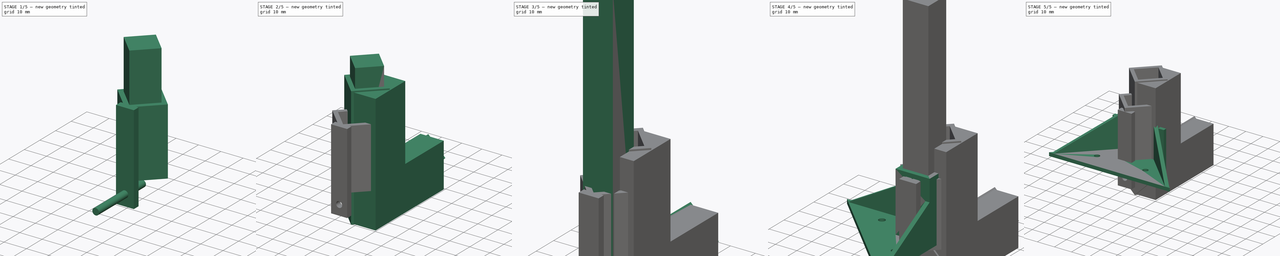
[diagram: build sequence overview — one tinted view per stage of 5, left to right]
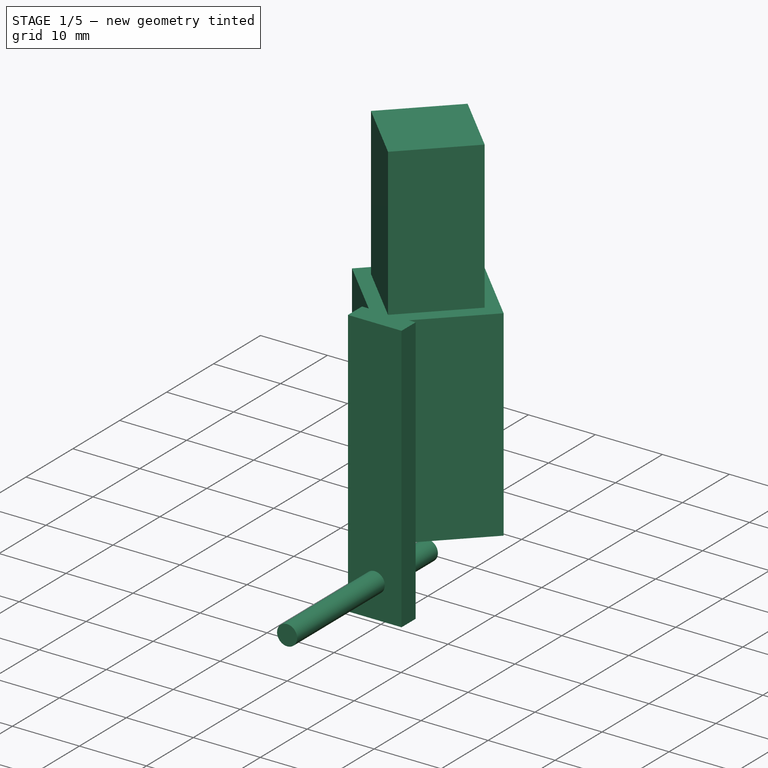
[diagram: stage 1 of 5 — iso view after this stage's code; geometry added in this stage tinted green]
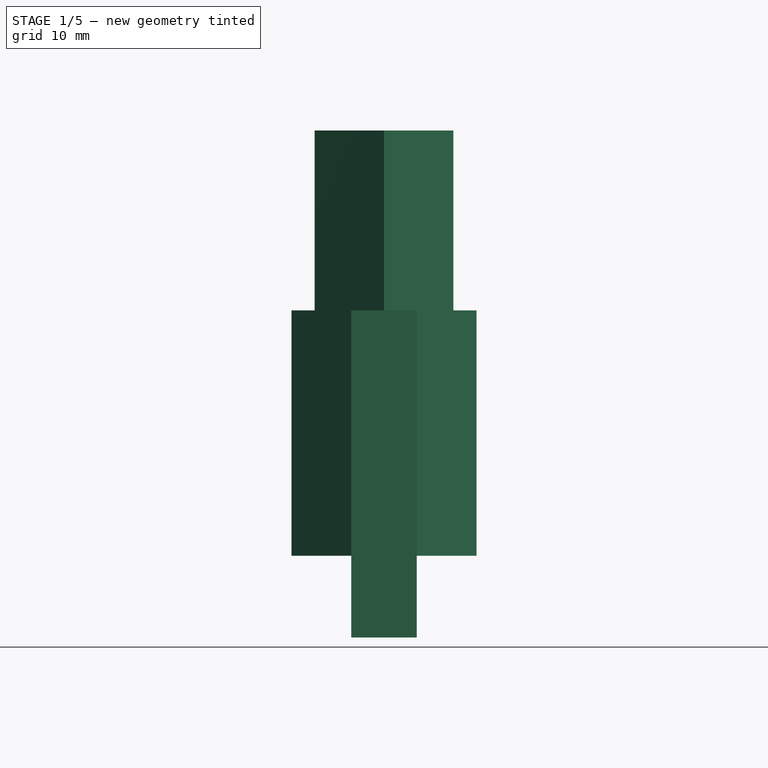
[diagram: stage 1 of 5 — front view after this stage's code; geometry added in this stage tinted green]
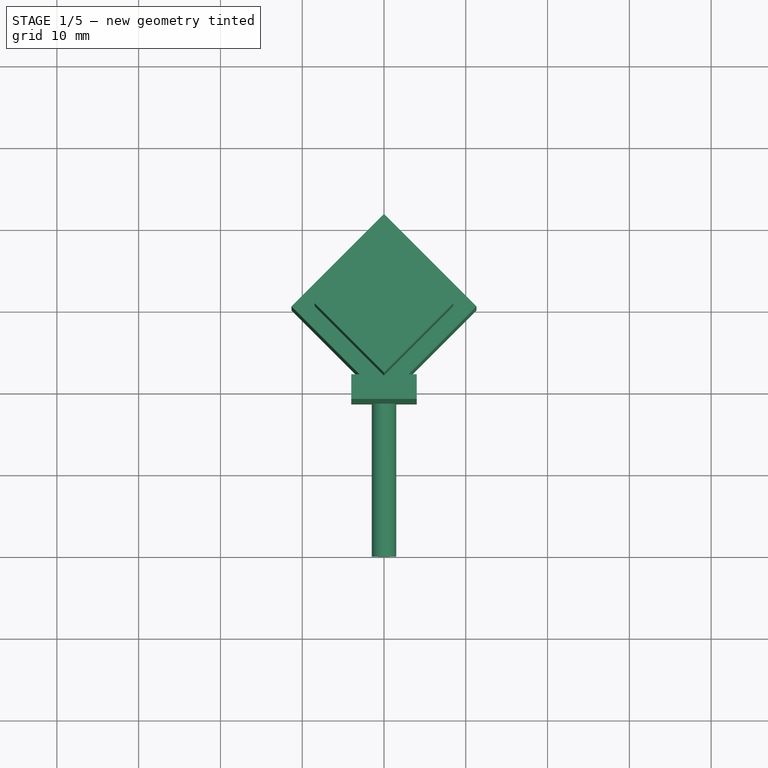
[diagram: stage 1 of 5 — top view after this stage's code; geometry added in this stage tinted green]
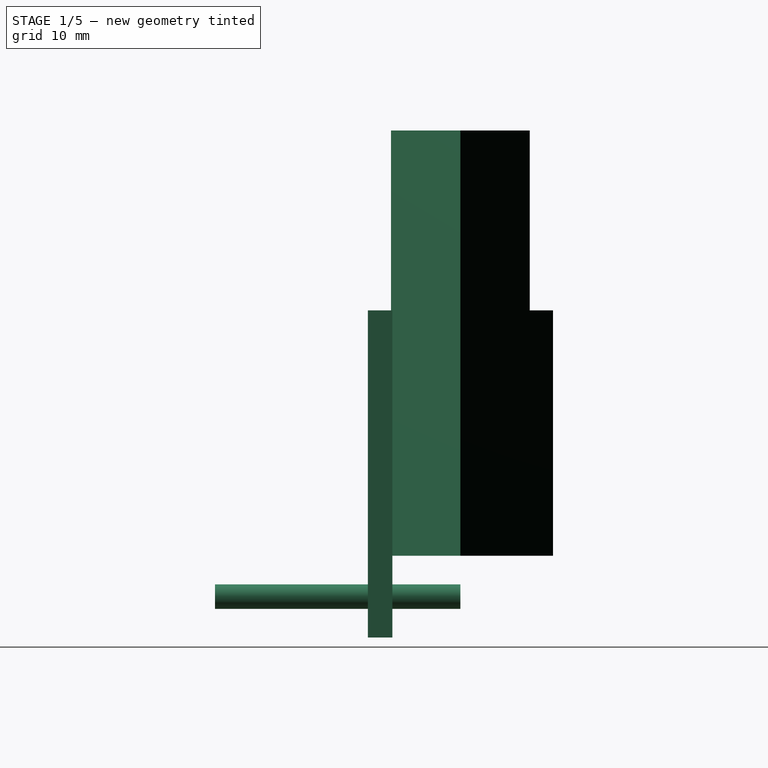
[diagram: stage 1 of 5 — right view after this stage's code; geometry added in this stage tinted green]
FCSTD DOCUMENT  (FreeCAD 0.15R4671 (Git))
Label: 木材治具
License: All rights reserved
LicenseURL: http://en.wikipedia.org/wiki/All_rights_reserved
objects: Part::Box×12, Part::MultiFuse×7, Part::Cut×4, Sketcher::SketchObject×4, PartDesign::Pad×4, Part::Cylinder×4
note: 39 computed .brp shape members not serialized (recipe doc carries the construction recipe); baked Part::Feature solids carry a one-line shape summary decoded from their .brp

FEATURE [Part::Box] Box009  label="立方体009"
  Height = 50
  Length = 12
  Placement = pos=(0,-8.48528,0) rot=(0,0,1;0.785398rad)
  Width = 12
FEATURE [Part::Box] Box010  label="立方体010"
  Height = 30
  Length = 16
  Placement = pos=(0,-11.3137,-2) rot=(0,0,1;0.785398rad)
  Width = 16
FEATURE [Part::Box] Box011  label="立方体011"
  Height = 40
  Length = 8
  Placement = pos=(-4,-11.3137,-12) rot=(0,0,1;0rad)
  Width = 3
FEATURE [Part::Cylinder] Cylinder003  label="円柱003"
  Angle = 360
  Height = 30
  Placement = pos=(0,0,-7) rot=(1,0,0;1.5708rad)
  Radius = 1.5
FEATURE [Part::MultiFuse] Fusion005
  Shapes = -> [Box010,Box011]
FEATURE [Part::MultiFuse] Fusion006
  Shapes = -> [Cylinder003,Box009]
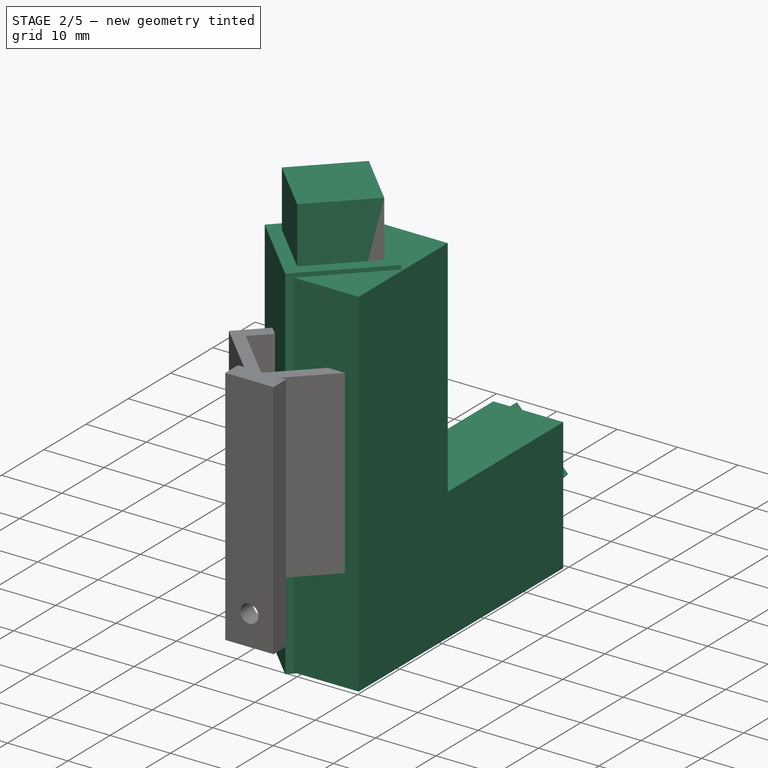
[diagram: stage 2 of 5 — iso view after this stage's code; geometry added in this stage tinted green]
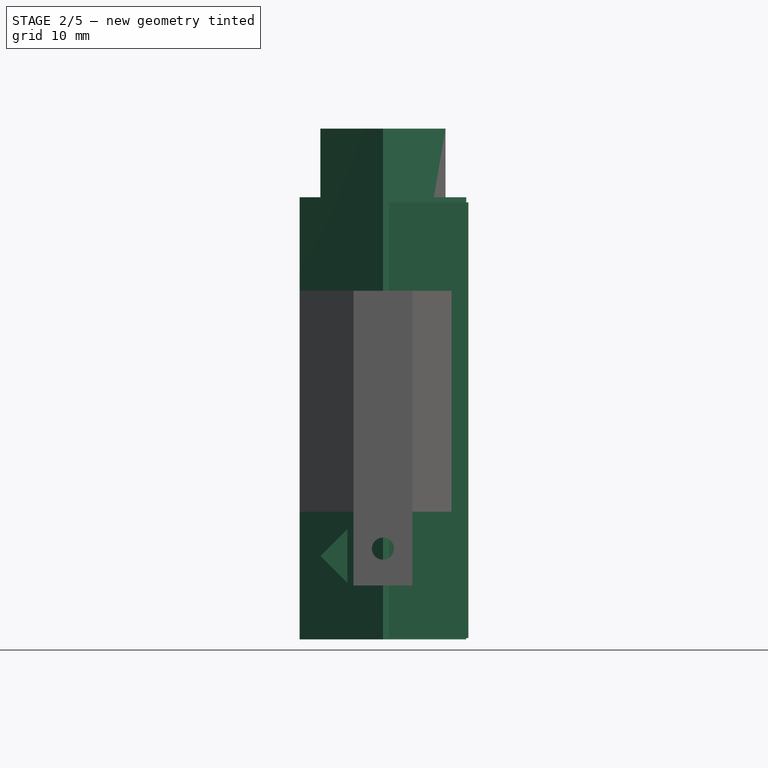
[diagram: stage 2 of 5 — front view after this stage's code; geometry added in this stage tinted green]
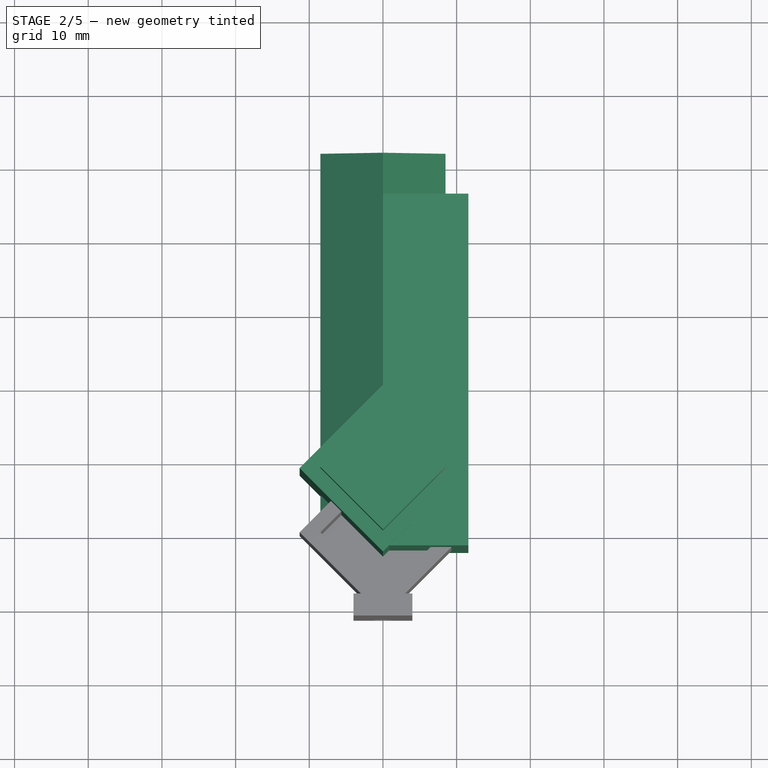
[diagram: stage 2 of 5 — top view after this stage's code; geometry added in this stage tinted green]
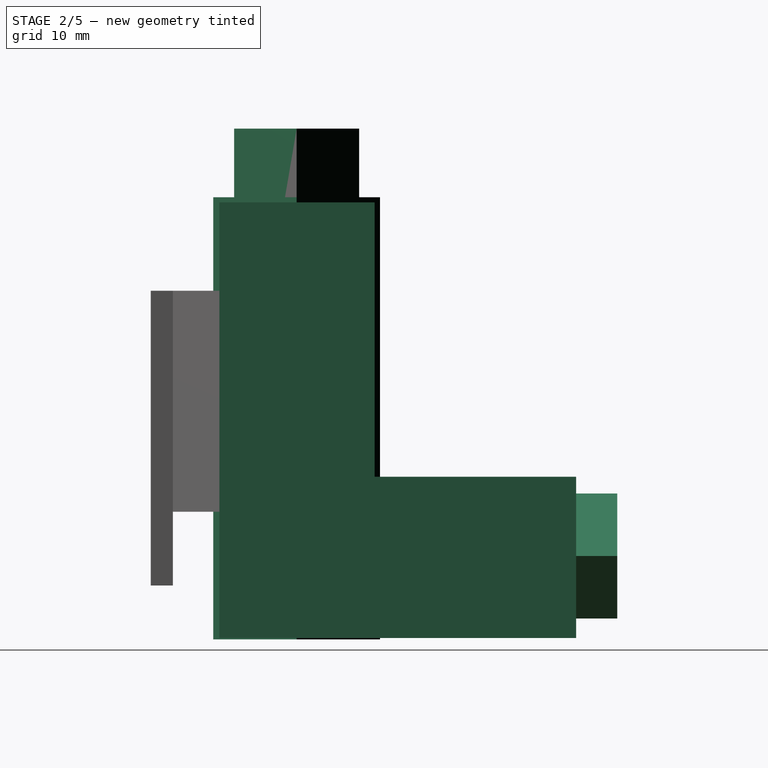
[diagram: stage 2 of 5 — right view after this stage's code; geometry added in this stage tinted green]
FEATURE [Part::Box] Box005  label="立方体005"
  Height = 50
  Length = 12
  Placement = pos=(0,0,0) rot=(0,0,1;0.785398rad)
  Width = 12
FEATURE [Part::Box] Box006  label="立方体006"
  Height = 12
  Length = 12
  Placement = pos=(-8.48528,2,-8) rot=(0,1,0;0.785398rad)
  Width = 50
FEATURE [Part::Box] Box008  label="立方体008"
  Height = 60
  Length = 16
  Placement = pos=(0,-2.82843,-19.3137) rot=(0,0,1;0.785398rad)
  Width = 16
FEATURE [Sketcher::SketchObject] Sketch003
  Placement = pos=(0,0,0) rot=(0.57735,0.57735,0.57735;2.0944rad)
  sketch-geometry (6):
    g0: LineSegment StartX=-2 StartY=40 StartZ=0 EndX=-2 EndY=-19.1288 EndZ=0
    g1: LineSegment StartX=-2 StartY=-19.1288 StartZ=0 EndX=46.4154 EndY=-19.1288 EndZ=0
    g2: LineSegment StartX=46.4154 StartY=-19.1288 StartZ=0 EndX=46.4154 EndY=2.7487 EndZ=0
    g3: LineSegment StartX=46.4154 StartY=2.7487 StartZ=0 EndX=19.0653 EndY=2.7487 EndZ=0
    g4: LineSegment StartX=19.0653 StartY=2.7487 StartZ=0 EndX=19.0653 EndY=40 EndZ=0
    g5: LineSegment StartX=19.0653 StartY=40 StartZ=0 EndX=-2 EndY=40 EndZ=0
  constraints (12):
    c: Vertical(g0)
    c: Coincident(g0,g1)
    c: Horizontal(g1)
    c: Coincident(g1,g2)
    c: Vertical(g2)
    c: Coincident(g2,g3)
    c: Horizontal(g3)
    c: Coincident(g3,g4)
    c: Vertical(g4)
    c: Coincident(g4,g5)
    c: Coincident(g5,g0)
    c: Horizontal(g5)
FEATURE [PartDesign::Pad] Pad003
  Length = 11.6
  Length2 = 100
  Placement = pos=(0,0,0) rot=(0.57735,0.57735,0.57735;2.0944rad)
  Sketch = -> Sketch003
  Type = 0
FEATURE [Part::MultiFuse] Fusion004
  Shapes = -> [Box006,Box005]
FEATURE [Part::Cut] Cut003  label="さきっちょ"
  Base = -> Fusion005
  Tool = -> Fusion006
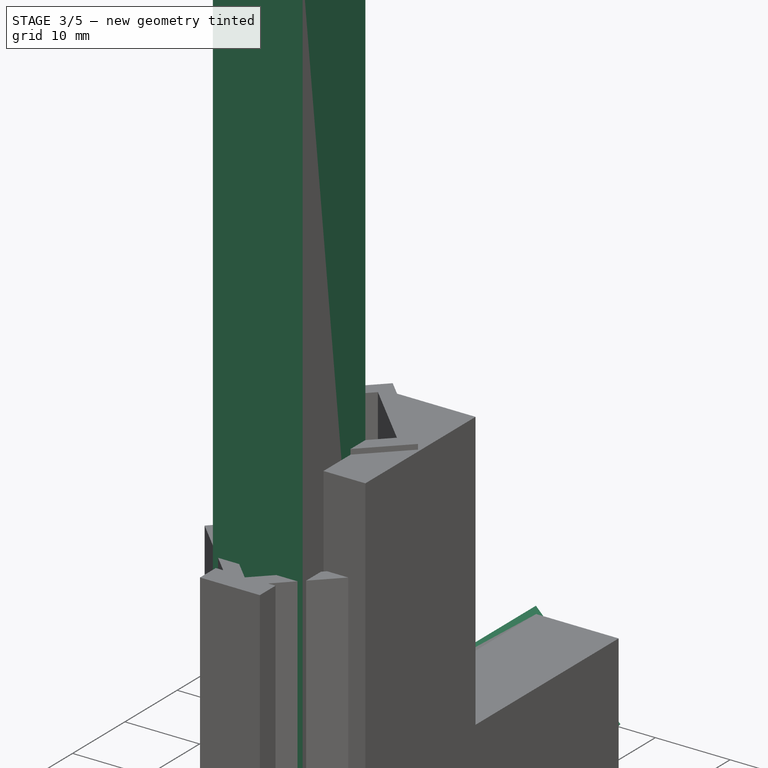
[diagram: stage 3 of 5 — iso view after this stage's code; geometry added in this stage tinted green]
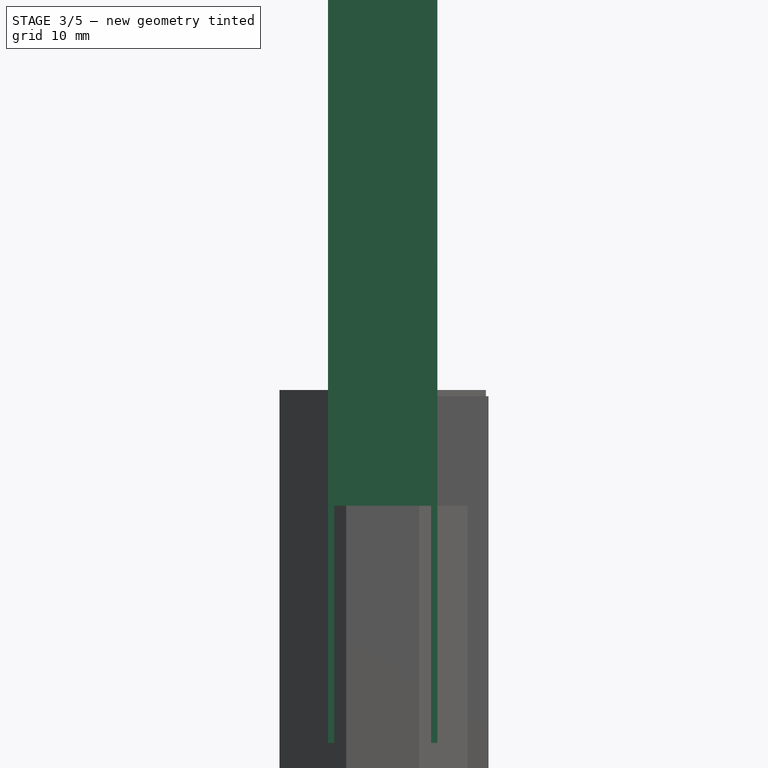
[diagram: stage 3 of 5 — front view after this stage's code; geometry added in this stage tinted green]
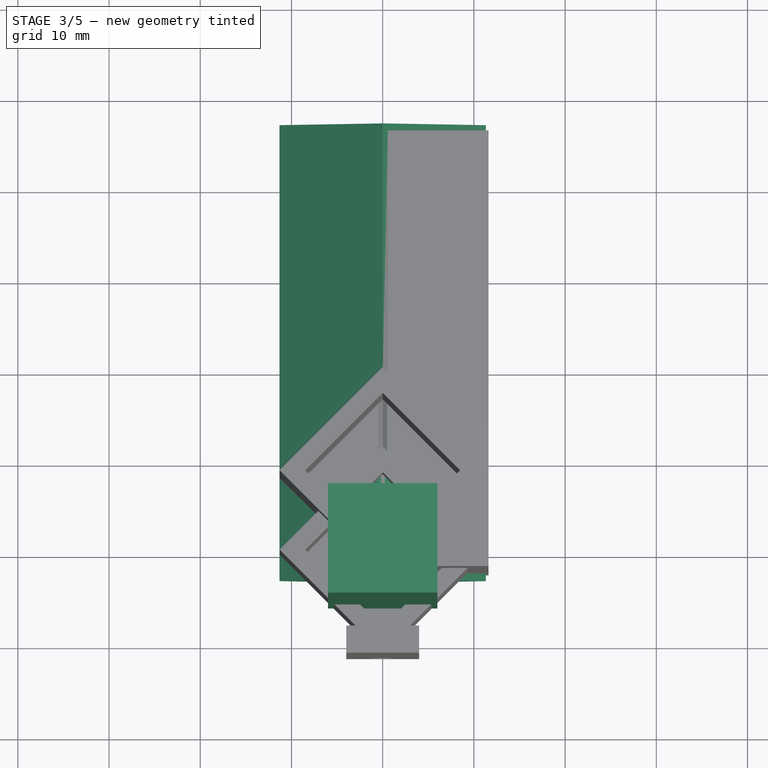
[diagram: stage 3 of 5 — top view after this stage's code; geometry added in this stage tinted green]
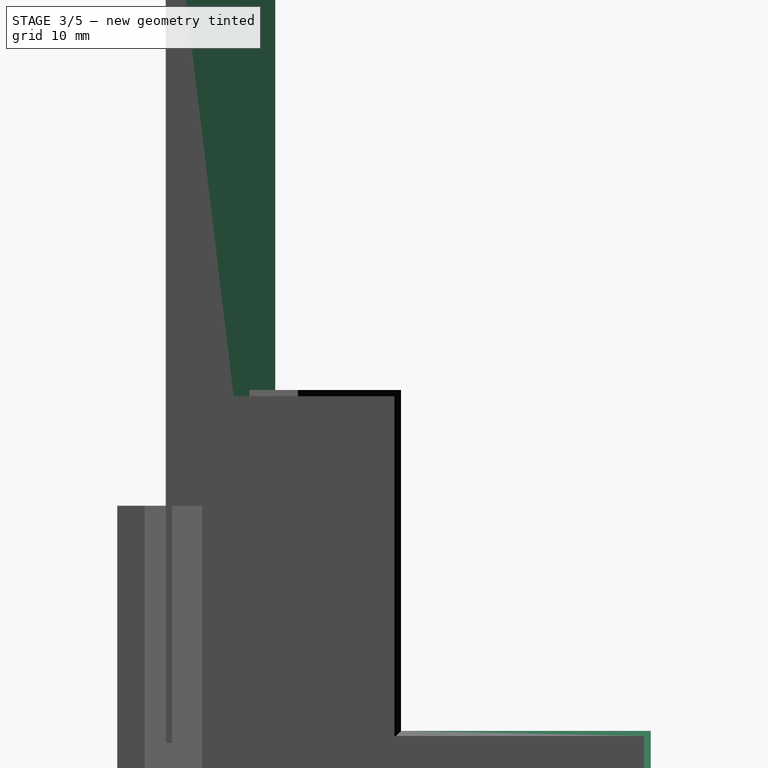
[diagram: stage 3 of 5 — right view after this stage's code; geometry added in this stage tinted green]
FEATURE [Part::Box] Box003  label="立方体003"
  Height = 100
  Length = 12
  Placement = pos=(-6,-6,2) rot=(0,0,1;0rad)
  Width = 12
FEATURE [Part::Cylinder] Cylinder  label="円柱"
  Angle = 360
  Height = 10
  Radius = 1.5
FEATURE [Part::Cylinder] Cylinder001  label="円柱001"
  Angle = 360
  Height = 10
  Placement = pos=(0,0,15) rot=(0,1,0;1.5708rad)
  Radius = 1.5
FEATURE [Part::Cylinder] Cylinder002  label="円柱002"
  Angle = 360
  Height = 10
  Placement = pos=(0,10,15) rot=(1,0,0;1.5708rad)
  Radius = 1.5
FEATURE [Part::Box] Box007  label="立方体007"
  Height = 16
  Length = 16
  Placement = pos=(-11.3137,-2.82843,-8) rot=(0,1,0;0.785398rad)
  Width = 50
FEATURE [Part::MultiFuse] Fusion003
  Shapes = -> [Box007,Pad003,Box008]
FEATURE [Part::Cut] Cut002  label="アングル"
  Base = -> Fusion003
  Tool = -> Fusion004
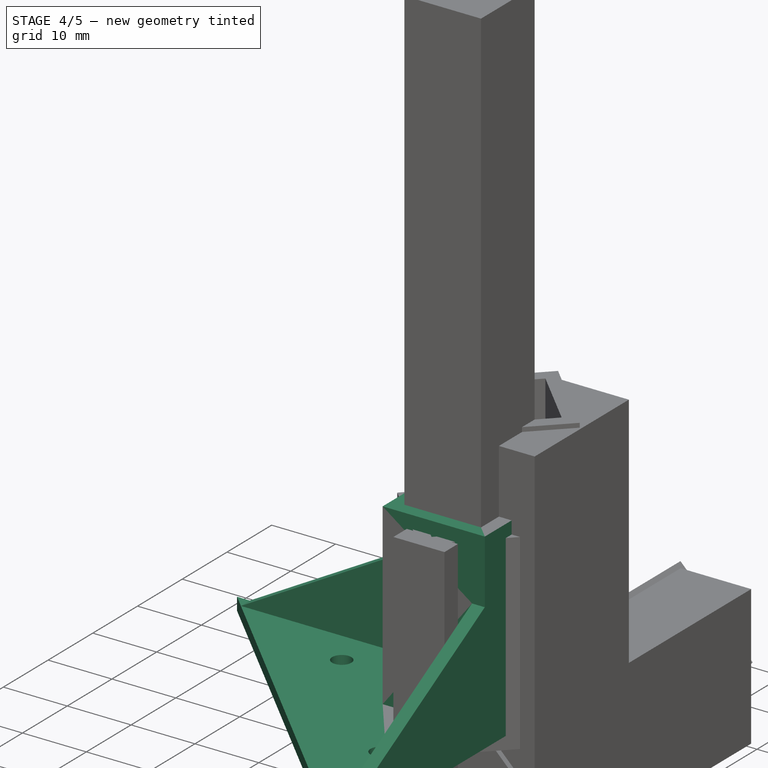
[diagram: stage 4 of 5 — iso view after this stage's code; geometry added in this stage tinted green]
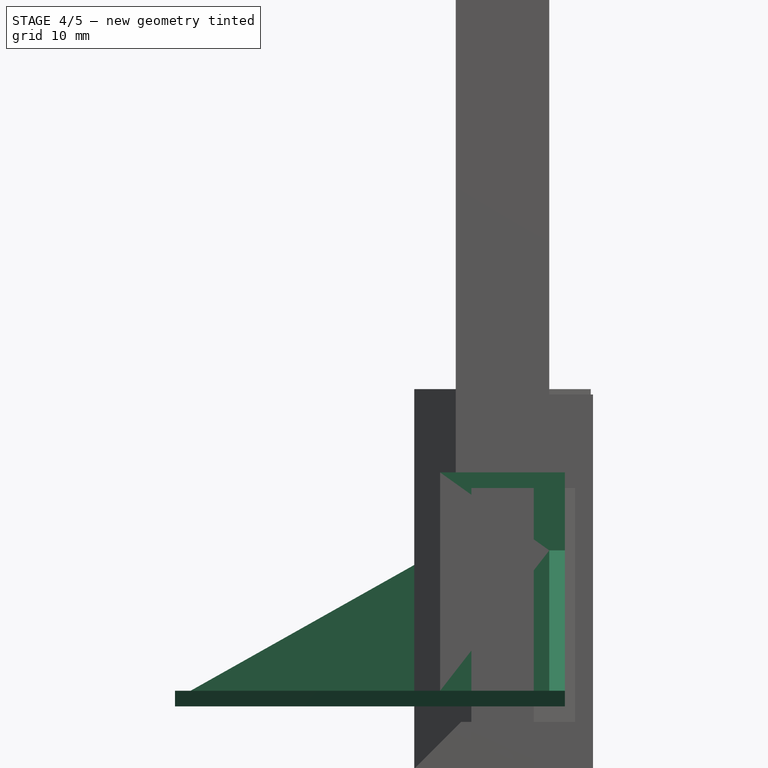
[diagram: stage 4 of 5 — front view after this stage's code; geometry added in this stage tinted green]
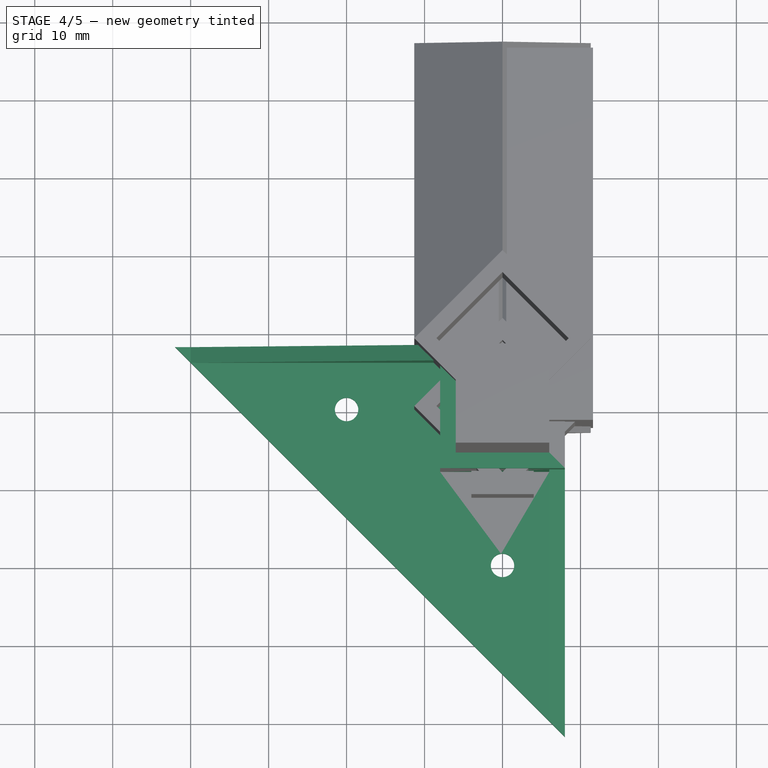
[diagram: stage 4 of 5 — top view after this stage's code; geometry added in this stage tinted green]
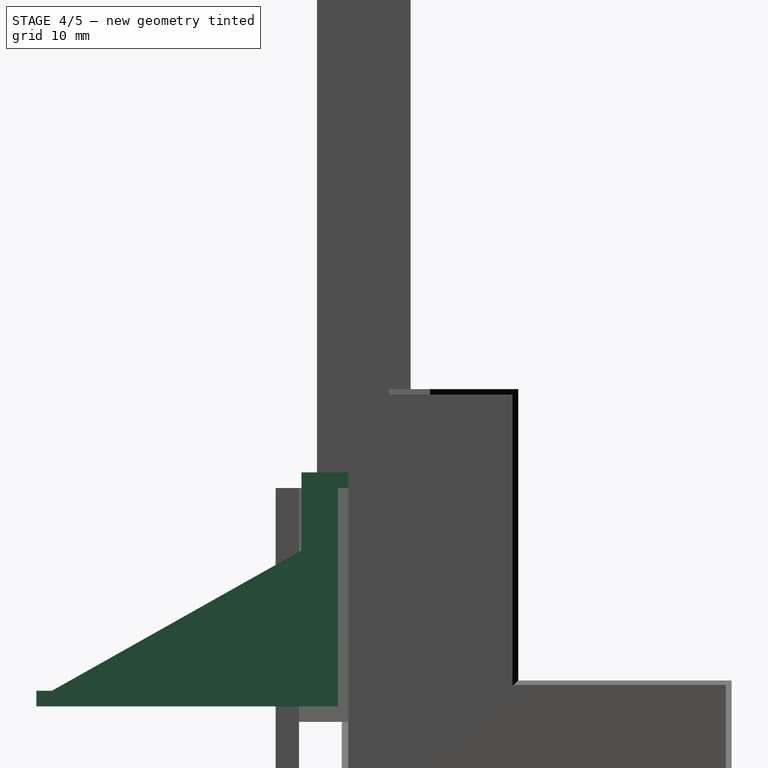
[diagram: stage 4 of 5 — right view after this stage's code; geometry added in this stage tinted green]
FEATURE [Part::Box] Box004  label="立方体004"
  Height = 30
  Length = 16
  Placement = pos=(-8,-8,0) rot=(0,0,1;0rad)
  Width = 16
FEATURE [Sketcher::SketchObject] Sketch
  sketch-geometry (5):
    g0: LineSegment StartX=8 StartY=8 StartZ=0 EndX=-42 EndY=8 EndZ=0
    g1: LineSegment StartX=-42 StartY=8 StartZ=0 EndX=8 EndY=-42 EndZ=0
    g2: LineSegment StartX=8 StartY=-42 StartZ=0 EndX=8 EndY=8 EndZ=0
    g3: Circle CenterX=-20 CenterY=0 CenterZ=0 NormalX=0 NormalY=0 NormalZ=1 Radius=1.5
    g4: Circle CenterX=0 CenterY=-20 CenterZ=0 NormalX=0 NormalY=0 NormalZ=1 Radius=1.5
  constraints (15):
    c: Horizontal(g0)
    c: Vertical(g2)
    c: Coincident(g0,g2)
    c: Coincident(g2,g1)
    c: Coincident(g1,g0)
    c: DistanceX(g0) = 8
    c: DistanceY(g0) = 8
    c: Angle(g2,g1) = 0.785398
    c: DistanceY(g2) = 50
    c: Radius(g3) = 1.5
    c: Radius(g4) = 1.5
    c: DistanceX(g3) = -20
    c: DistanceY(g3) = 0
    c: DistanceX(g4) = 0
    c: DistanceY(g4) = -20
FEATURE [PartDesign::Pad] Pad
  Length = 2
  Length2 = 100
  Sketch = -> Sketch
  Type = 0
FEATURE [Sketcher::SketchObject] Sketch001
  Placement = pos=(0,8,0) rot=(-1,0,0;4.71239rad)
  sketch-geometry (3):
    g0: LineSegment StartX=-8 StartY=20 StartZ=0 EndX=-8 EndY=2 EndZ=0
    g1: LineSegment StartX=-8 StartY=2 StartZ=0 EndX=-40 EndY=2 EndZ=0
    g2: LineSegment StartX=-40 StartY=2 StartZ=0 EndX=-8 EndY=20 EndZ=0
  constraints (9):
    c: Vertical(g0)
    c: Coincident(g0,g1)
    c: Horizontal(g1)
    c: Coincident(g1,g2)
    c: Coincident(g2,g0)
    c: DistanceX(g0) = -8
    c: DistanceY(g0) = 20
    c: DistanceY(g0) = 2
    c: DistanceX(g1) = -40
FEATURE [PartDesign::Pad] Pad001
  Length = 2
  Length2 = 100
  Placement = pos=(0,8,0) rot=(-1,0,0;4.71239rad)
  Sketch = -> Sketch001
  Type = 0
FEATURE [Sketcher::SketchObject] Sketch002
  Placement = pos=(6,0,0) rot=(0.57735,0.57735,0.57735;2.0944rad)
  sketch-geometry (3):
    g0: LineSegment StartX=-8 StartY=20 StartZ=0 EndX=-8 EndY=2 EndZ=0
    g1: LineSegment StartX=-8 StartY=2 StartZ=0 EndX=-40 EndY=2 EndZ=0
    g2: LineSegment StartX=-40 StartY=2 StartZ=0 EndX=-8 EndY=20 EndZ=0
  constraints (8):
    c: Vertical(g0)
    c: Coincident(g0,g1)
    c: Horizontal(g1)
    c: Coincident(g1,g2)
    c: DistanceX(g0) = -8
    c: DistanceY(g0) = 20
    c: DistanceY(g0) = 2
    c: DistanceX(g1) = -40
FEATURE [PartDesign::Pad] Pad002
  Length = 2
  Length2 = 100
  Placement = pos=(6,0,0) rot=(0.57735,0.57735,0.57735;2.0944rad)
  Sketch = -> Sketch002
  Type = 0
FEATURE [Part::MultiFuse] Fusion001
  Shapes = -> [Box004,Pad002,Pad001,Pad]
FEATURE [Part::MultiFuse] Fusion002
  Shapes = -> [Box003,Cylinder001,Cylinder,Cylinder002]
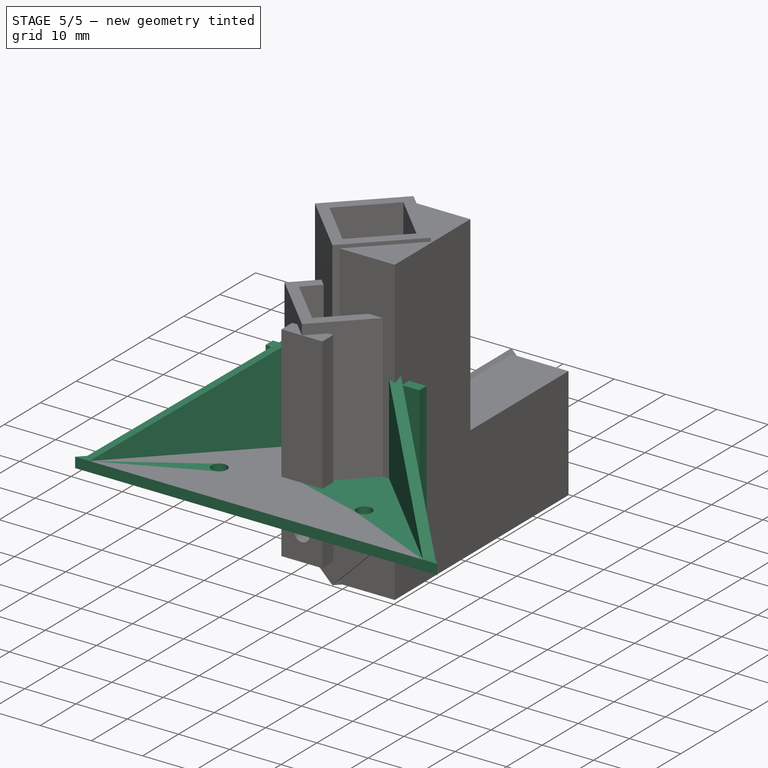
[diagram: stage 5 of 5 — iso view after this stage's code; geometry added in this stage tinted green]
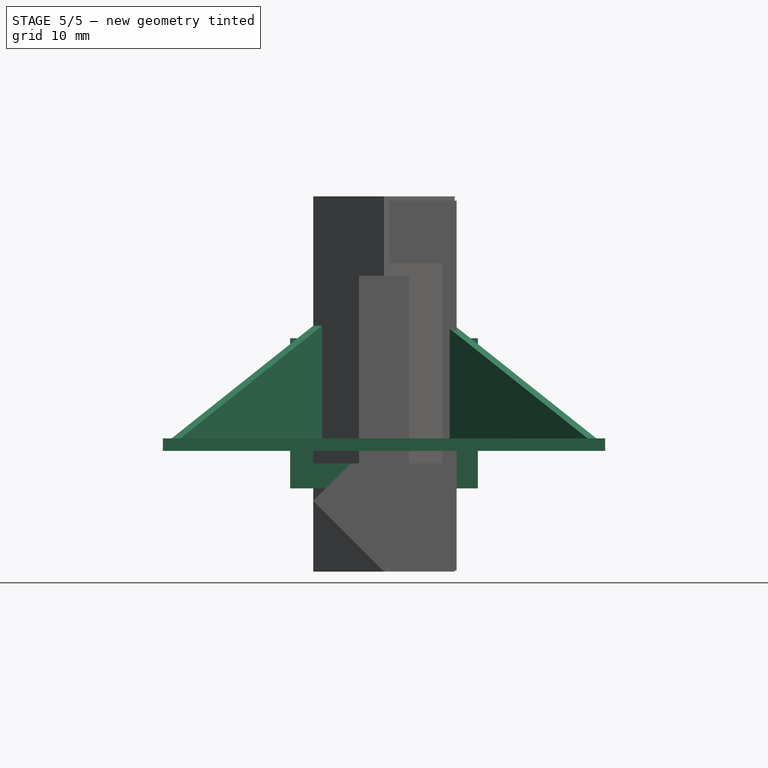
[diagram: stage 5 of 5 — front view after this stage's code; geometry added in this stage tinted green]
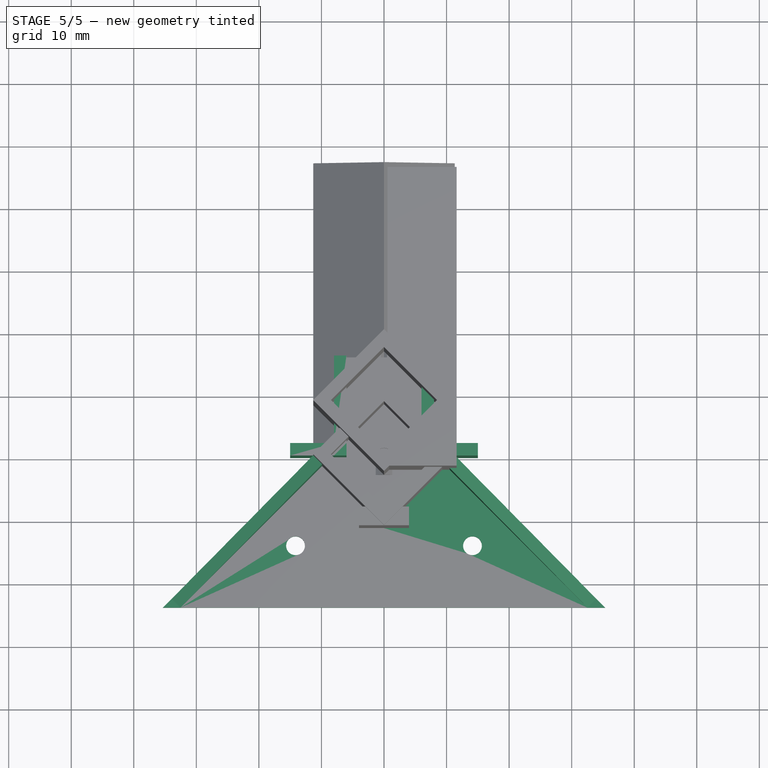
[diagram: stage 5 of 5 — top view after this stage's code; geometry added in this stage tinted green]
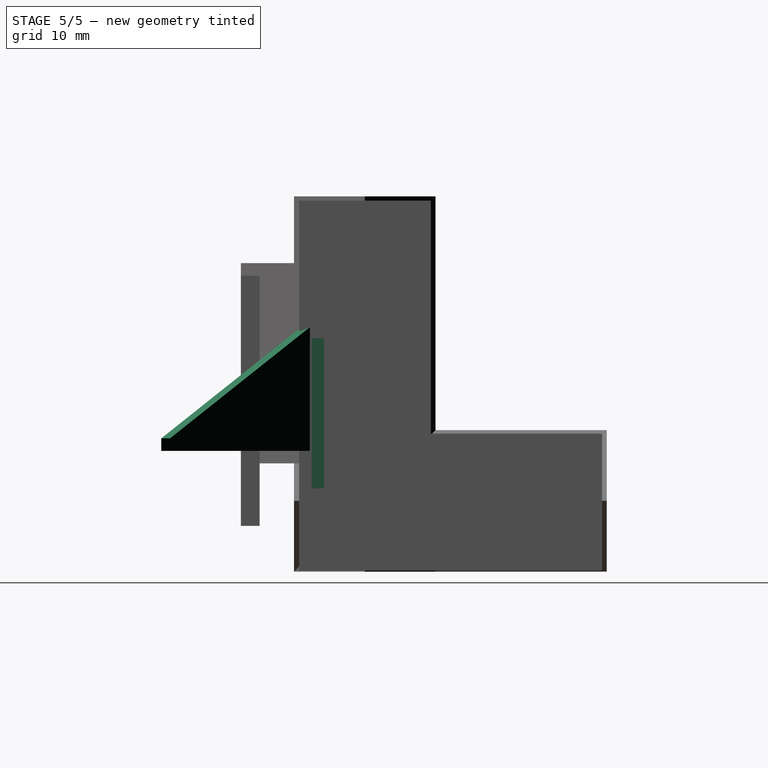
[diagram: stage 5 of 5 — right view after this stage's code; geometry added in this stage tinted green]
FEATURE [Part::Box] Box  label="立方体"
  Height = 20
  Length = 16
  Placement = pos=(-8,0,-2) rot=(0,0,1;0rad)
  Width = 16
FEATURE [Part::Box] Box001  label="立方体001"
  Height = 30
  Length = 12
  Placement = pos=(-6,0,0) rot=(0,0,1;0rad)
  Width = 100
FEATURE [Part::Box] Box002  label="立方体002"
  Height = 24
  Length = 30
  Placement = pos=(-15,0,-6) rot=(0,0,1;0rad)
  Width = 2
FEATURE [Part::MultiFuse] Fusion
  Shapes = -> [Box002,Box]
FEATURE [Part::Cut] Cut  label="カット治具"
  Base = -> Fusion
  Tool = -> Box001
FEATURE [Part::Cut] Cut001  label="ベース部分"
  Base = -> Fusion001
  Placement = pos=(0,0,0) rot=(0,0,1;0.785398rad)
  Tool = -> Fusion002
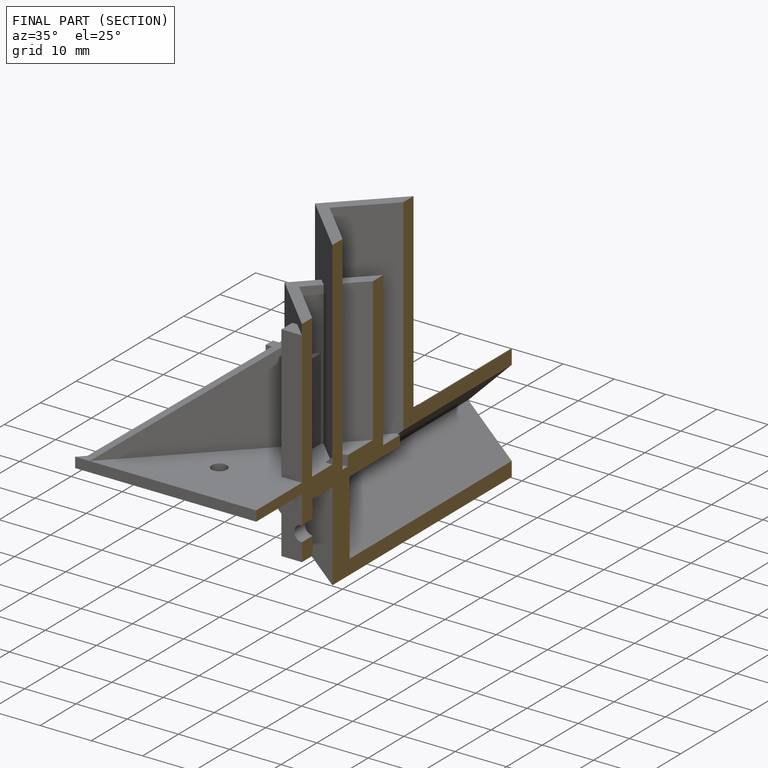
[diagram: finished part — half-section view (interior)]
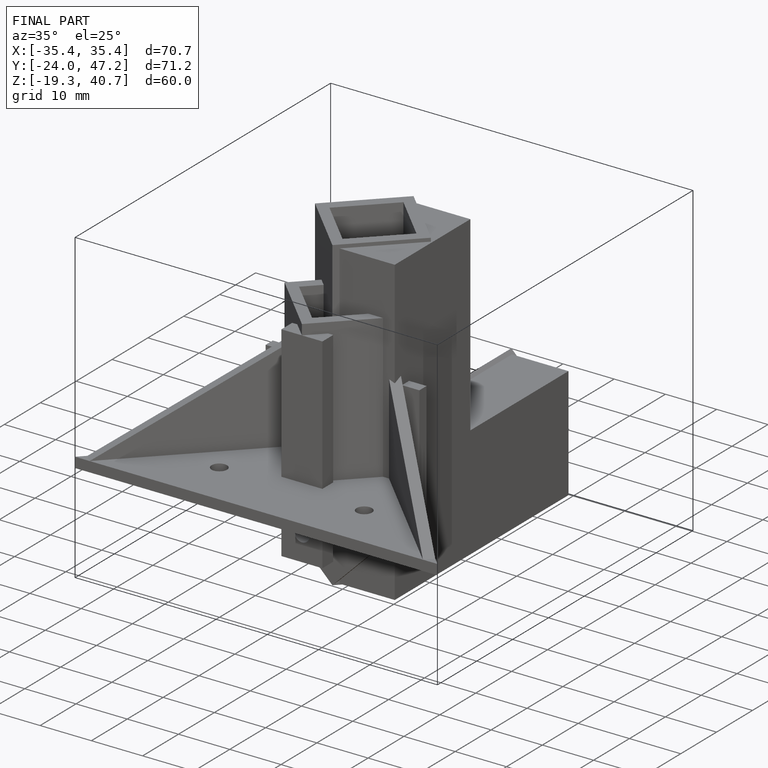
[diagram: finished part — iso view with bounding-box wireframe]
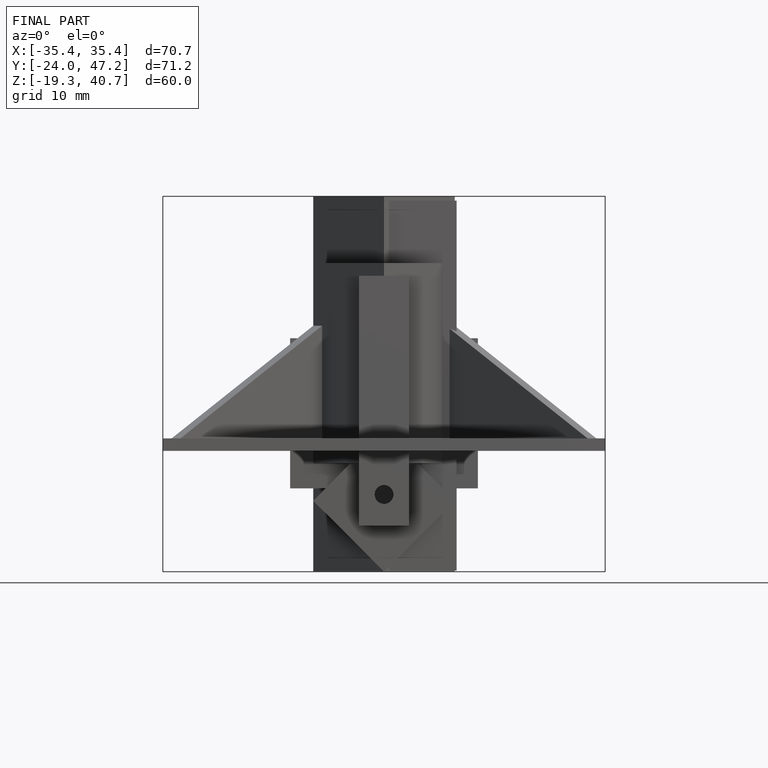
[diagram: finished part — front view with bounding-box wireframe]
